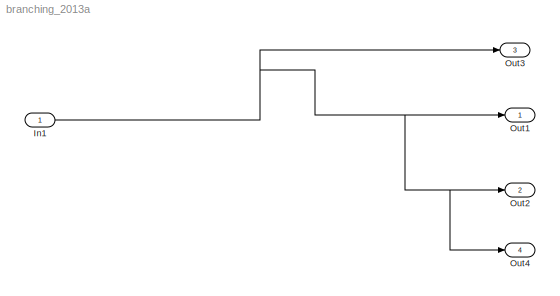
MODEL branching_2013a
KIND model
BLOCK [Inport] In1
  IconDisplay = Port number
  SID = 1
BLOCK [Outport] Out1
  IconDisplay = Port number
  SID = 2
BLOCK [Outport] Out2
  IconDisplay = Port number
  Port = 2
  SID = 3
BLOCK [Outport] Out3
  IconDisplay = Port number
  Port = 3
  SID = 4
BLOCK [Outport] Out4
  IconDisplay = Port number
  Port = 4
  SID = 5
NET In1:1 -> Out1:1, Out2:1, Out3:1, Out4:1
note: NET lines group one-source signal fan-out (src -> all destinations, sorted); 1:1 wires keep LINE
